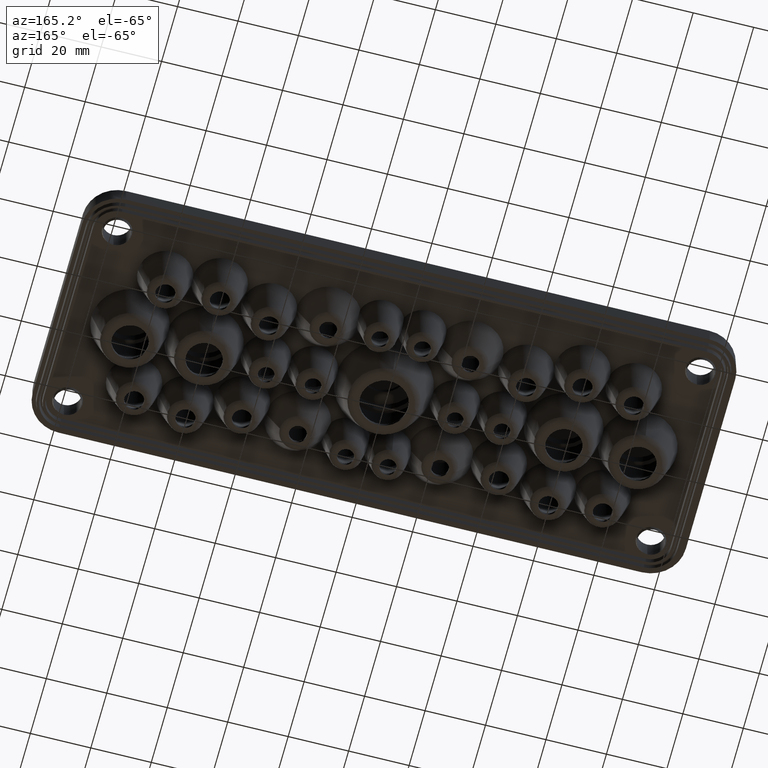
[diagram: clean part render]
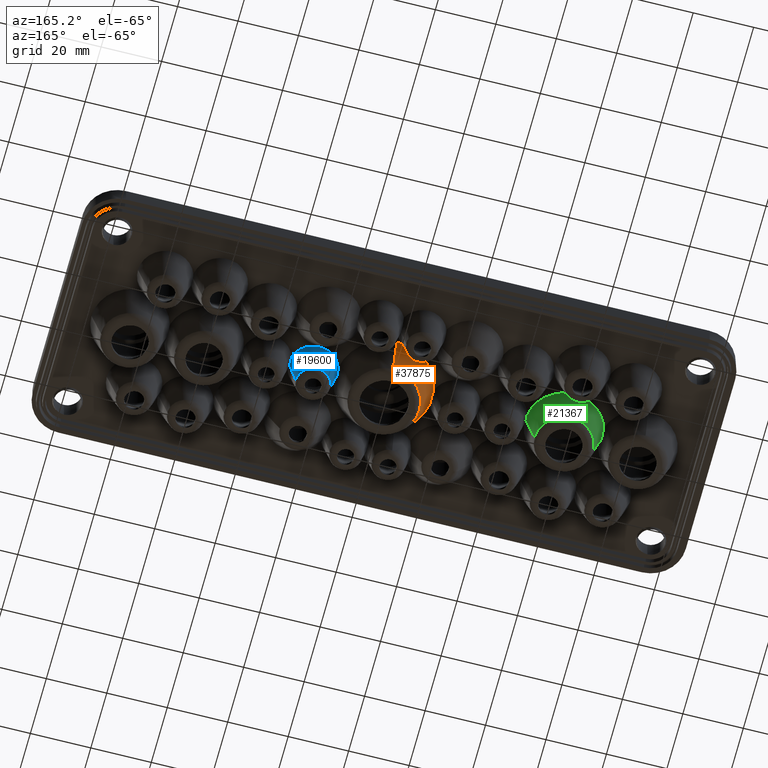
[diagram: same view with three faces highlighted in distinct colors, each labeled with its STEP entity id]
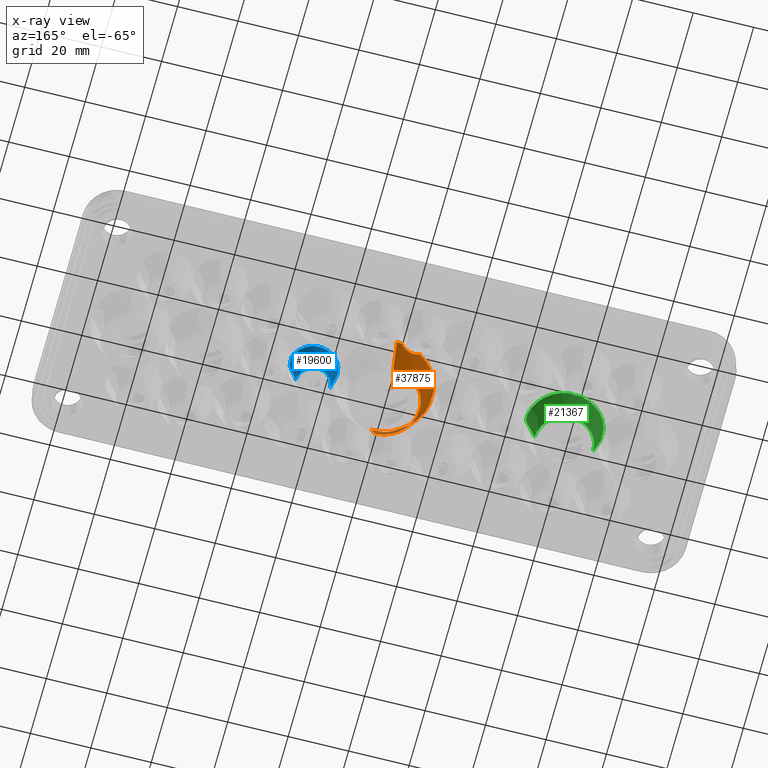
[diagram: x-ray of the same camera — body ghosted, the three highlighted faces saturated]
A machine part, auxiliary view with three faces highlighted in distinct colors.
The next image is the same camera in x-ray (body ghosted, the three faces saturated) — at least one of them is partly hidden behind the body in this view.
Their STEP definitions:

[orange] entity #37875 — the highlighted conical surface has half-angle 20 deg.
#103 = EDGE_CURVE ( 'NONE', #30926, #32108, #34667, .T. ) ;
#677 = EDGE_CURVE ( 'NONE', #29152, #22275, #5481, .T. ) ;
#719 = CARTESIAN_POINT ( 'NONE',  ( -15.62597067010660500, -0.4681044629009573600, -1.012806392266421000 ) ) ;
#922 = DIRECTION ( 'NONE',  ( 0.0000000000000000000, -0.3420201433256686000, 0.9396926207859085400 ) ) ;
#952 = EDGE_CURVE ( 'NONE', #9441, #12457, #23903, .T. ) ;
#2032 = CARTESIAN_POINT ( 'NONE',  ( -8.127618224688598400, -13.78193825242696800, 2.235205155984546900E-015 ) ) ;
#2047 = EDGE_LOOP ( 'NONE', ( #15719, #13426, #24163, #34723, #36636, #36257, #28480, #16507, #18068, #30564, #39861, #25974, #26810 ) ) ;
#2074 = CARTESIAN_POINT ( 'NONE',  ( -4.387149454804543300, 14.60875021664797800, -2.062746000812208700 ) ) ;
#2442 = CARTESIAN_POINT ( 'NONE',  ( -15.62121077094934800, -3.759059662228034300E-015, -1.040714853549272700 ) ) ;
#3104 = DIRECTION ( 'NONE',  ( -0.0000000000000000000, -6.018531076210112000E-033, -1.000000000000000000 ) ) ;
#3368 = CARTESIAN_POINT ( 'NONE',  ( -3.366676951959469000, -15.00823346114531800, -1.701418165386333400 ) ) ;
#3560 = CARTESIAN_POINT ( 'NONE',  ( -1.544499134724594700, 15.92527935148501200, 0.0000000000000000000 ) ) ;
#4255 = DIRECTION ( 'NONE',  ( -0.0000000000000000000, -0.0000000000000000000, 1.000000000000000000 ) ) ;
#4347 = CARTESIAN_POINT ( 'NONE',  ( -15.64362143579583300, -0.9183102480453798600, -0.9095703723358304900 ) ) ;
#4627 = DIRECTION ( 'NONE',  ( -0.0000000000000000000, -6.018531076210112000E-033, -1.000000000000000000 ) ) ;
#4637 = DIRECTION ( 'NONE',  ( 4.188538737676991100E-017, 0.3420201433256686000, 0.9396926207859085400 ) ) ;
#4957 = VERTEX_POINT ( 'NONE', #2442 ) ;
#5101 = CARTESIAN_POINT ( 'NONE',  ( -15.74948214220684600, 2.158062697357395100, -0.2943012987985521600 ) ) ;
#5481 = CIRCLE ( 'NONE', #10661, 11.74735711969176700 ) ;
#5552 = CARTESIAN_POINT ( 'NONE',  ( -1.951558839765675300, 15.69329103100157100, -0.5155321670310039100 ) ) ;
#5705 = CARTESIAN_POINT ( 'NONE',  ( 6.938893903907228400E-015, -16.00000000000000400, 1.407554743615174300E-015 ) ) ;
#6102 = CARTESIAN_POINT ( 'NONE',  ( -6.999999999999998200, -13.93624088590695800, -1.111425984927712400 ) ) ;
#7110 = DIRECTION ( 'NONE',  ( -0.0000000000000000000, -0.0000000000000000000, 1.000000000000000000 ) ) ;
#7187 = EDGE_CURVE ( 'NONE', #22275, #33194, #36853, .T. ) ;
#7410 = VECTOR ( 'NONE', #4637, 999.9999999999998900 ) ;
#7814 = CARTESIAN_POINT ( 'NONE',  ( -4.065177896095978100, 14.72563533031116000, -1.997598085800660100 ) ) ;
#8629 = AXIS2_PLACEMENT_3D ( 'NONE', #11650, #4255, #15102 ) ;
#8818 = B_SPLINE_CURVE_WITH_KNOTS ( 'NONE', 3,
 ( #2032, #43153, #33443, #6102 ),
 .UNSPECIFIED., .F., .F.,
 ( 4, 4 ),
 ( 2.853110011059569900E-018, 0.001590412372373598100 ),
 .UNSPECIFIED. ) ;
#8861 = CARTESIAN_POINT ( 'NONE',  ( -15.65661046168946200, 1.138639472964645800, -0.8336803856345039700 ) ) ;
#8988 = CIRCLE ( 'NONE', #25149, 16.00000000000000000 ) ;
#9441 = VERTEX_POINT ( 'NONE', #3560 ) ;
#10107 = LINE ( 'NONE', #5705, #11205 ) ;
#10661 = AXIS2_PLACEMENT_3D ( 'NONE', #17350, #7110, #27611 ) ;
#10737 = CARTESIAN_POINT ( 'NONE',  ( -3.483099713754390900, -14.95896945292664500, -1.762270332776925800 ) ) ;
#10982 = VERTEX_POINT ( 'NONE', #25050 ) ;
#11205 = VECTOR ( 'NONE', #922, 999.9999999999998900 ) ;
#11274 = CARTESIAN_POINT ( 'NONE',  ( -7.662053718083630100, 13.83406847441088800, -0.5154882228604559200 ) ) ;
#11348 = EDGE_CURVE ( 'NONE', #29152, #18548, #36072, .T. ) ;
#11421 = CARTESIAN_POINT ( 'NONE',  ( -5.385736635581388000, 14.29578260036790600, -1.997077423825628600 ) ) ;
#11553 = CARTESIAN_POINT ( 'NONE',  ( 6.938893903907228400E-015, -4.203148872078097000E-015, 0.0000000000000000000 ) ) ;
#11571 = CARTESIAN_POINT ( 'NONE',  ( -1.742494797188678400, 15.80981067550819900, -0.2632541495825668200 ) ) ;
#11650 = CARTESIAN_POINT ( 'NONE',  ( 7.105427357601001900E-015, -4.203148872078097000E-015, -11.68404028665134000 ) ) ;
#11678 = EDGE_CURVE ( 'NONE', #33194, #30926, #10107, .T. ) ;
#12457 = VERTEX_POINT ( 'NONE', #39072 ) ;
#12761 = EDGE_CURVE ( 'NONE', #10982, #4957, #35048, .T. ) ;
#13426 = ORIENTED_EDGE ( 'NONE', *, *, #677, .T. ) ;
#13499 = CARTESIAN_POINT ( 'NONE',  ( -3.027835619053830900, -15.15602583514638900, -1.501152320803411900 ) ) ;
#13569 = AXIS2_PLACEMENT_3D ( 'NONE', #28796, #25421, #25139 ) ;
#13642 = CARTESIAN_POINT ( 'NONE',  ( -1.864816163021597400, -15.73847433419334200, -0.4258920919362892400 ) ) ;
#13944 = CARTESIAN_POINT ( 'NONE',  ( -2.212875180717590200, -15.54904168334245400, -0.8245992298947070200 ) ) ;
#14461 = CARTESIAN_POINT ( 'NONE',  ( -15.62121077094934800, -3.759059662228034300E-015, -1.040714853549272700 ) ) ;
#14729 = CARTESIAN_POINT ( 'NONE',  ( -7.899644501102760500, 13.80516875212898700, -0.2631949562424530900 ) ) ;
#15035 = CARTESIAN_POINT ( 'NONE',  ( -2.401406213352096100, 15.45666567003327100, -0.9883469783576297500 ) ) ;
#15102 = DIRECTION ( 'NONE',  ( 1.000000000000000000, 0.0000000000000000000, 0.0000000000000000000 ) ) ;
#15201 = CARTESIAN_POINT ( 'NONE',  ( -15.70511760996504200, 1.772948673933423000, -0.5513307004869053600 ) ) ;
#15719 = ORIENTED_EDGE ( 'NONE', *, *, #11348, .F. ) ;
#15722 = CONICAL_SURFACE ( 'NONE', #27115, 16.00000000000000000, 0.3490658503988657800 ) ;
#15960 = CARTESIAN_POINT ( 'NONE',  ( -3.169943328416988700, 15.09150807438981600, -1.598295068752718200 ) ) ;
#16278 = FACE_OUTER_BOUND ( 'NONE', #2047, .T. ) ;
#16507 = ORIENTED_EDGE ( 'NONE', *, *, #20937, .T. ) ;
#17045 = CARTESIAN_POINT ( 'NONE',  ( -15.80085106382977900, -2.516566243648100400, -2.185530005163326800E-015 ) ) ;
#17350 = CARTESIAN_POINT ( 'NONE',  ( 7.105427357601001900E-015, -4.203148872078097000E-015, -11.68404028665134000 ) ) ;
#17525 = CARTESIAN_POINT ( 'NONE',  ( -5.301891818631872900, -14.32054950735613600, -2.010792275444580800 ) ) ;
#17922 = CARTESIAN_POINT ( 'NONE',  ( -1.544499134724599500, -15.92527935148502200, 4.792339433711988400E-032 ) ) ;
#18055 = CARTESIAN_POINT ( 'NONE',  ( 8.898328782542993900E-015, 15.99999999999999600, 1.407554743615174300E-015 ) ) ;
#18068 = ORIENTED_EDGE ( 'NONE', *, *, #12761, .T. ) ;
#18165 = AXIS2_PLACEMENT_3D ( 'NONE', #42434, #4627, #18493 ) ;
#18217 = CARTESIAN_POINT ( 'NONE',  ( -15.65646908843779200, -1.136692418668695100, -0.8345038552028827300 ) ) ;
#18493 = DIRECTION ( 'NONE',  ( 0.0000000000000000000, -1.000000000000000000, 0.0000000000000000000 ) ) ;
#18548 = VERTEX_POINT ( 'NONE', #35611 ) ;
#18967 = CARTESIAN_POINT ( 'NONE',  ( -15.80085106382977900, 2.516566243648089300, -8.785477235911880100E-018 ) ) ;
#19111 = CARTESIAN_POINT ( 'NONE',  ( -15.62121077094935200, 0.2348887737823298300, -1.040714853549273600 ) ) ;
#19273 = VERTEX_POINT ( 'NONE', #20441 ) ;
#20398 = CARTESIAN_POINT ( 'NONE',  ( -6.783023867124986100, -13.97361275222807100, -1.287246792469420200 ) ) ;
#20441 = CARTESIAN_POINT ( 'NONE',  ( -8.127618224688598400, -13.78193825242696800, 2.235205155984546900E-015 ) ) ;
#20874 = EDGE_CURVE ( 'NONE', #28255, #12457, #26115, .T. ) ;
#20937 = EDGE_CURVE ( 'NONE', #19273, #10982, #43490, .T. ) ;
#21361 = CARTESIAN_POINT ( 'NONE',  ( -15.74956085684990000, -2.158612046609589300, -0.2938503292053902800 ) ) ;
#22275 = VERTEX_POINT ( 'NONE', #40309 ) ;
#22900 = VERTEX_POINT ( 'NONE', #42218 ) ;
#23875 = CARTESIAN_POINT ( 'NONE',  ( -3.849865250086897300, -14.81079178680996300, -1.916708623523139900 ) ) ;
#23903 = B_SPLINE_CURVE_WITH_KNOTS ( 'NONE', 3,
 ( #28502, #11571, #5552, #15035, #28648, #15960, #24973, #7814, #2074, #42719, #11421, #28957, #39410, #31969, #43511, #11274, #14729, #38952 ),
 .UNSPECIFIED., .F., .F.,
 ( 4, 2, 2, 2, 2, 2, 2, 2, 4 ),
 ( 9.134646826727812000E-019, 0.001041287543524007400, 0.002082575087048013900, 0.003123862630572020600, 0.004165150174096027800, 0.005206437717620035000, 0.006247725261144042100, 0.007289012804668050200, 0.008330300348192059100 ),
 .UNSPECIFIED. ) ;
#24163 = ORIENTED_EDGE ( 'NONE', *, *, #7187, .T. ) ;
#24563 = CARTESIAN_POINT ( 'NONE',  ( -15.62121077094934300, -0.2343100807263288100, -1.040714853549273600 ) ) ;
#24973 = CARTESIAN_POINT ( 'NONE',  ( -3.450489949731690300, 14.96956669540714700, -1.762257748974168400 ) ) ;
#25050 = CARTESIAN_POINT ( 'NONE',  ( -15.80085106382977900, -2.516566243648100400, -2.185530005163326800E-015 ) ) ;
#25139 = DIRECTION ( 'NONE',  ( 1.000000000000000000, 1.776356839400250500E-015, 0.0000000000000000000 ) ) ;
#25149 = AXIS2_PLACEMENT_3D ( 'NONE', #11553, #28636, #25403 ) ;
#25403 = DIRECTION ( 'NONE',  ( 1.000000000000000000, -1.065814103640150300E-014, 0.0000000000000000000 ) ) ;
#25421 = DIRECTION ( 'NONE',  ( -0.0000000000000000000, 0.0000000000000000000, -1.000000000000000000 ) ) ;
#25974 = ORIENTED_EDGE ( 'NONE', *, *, #952, .F. ) ;
#26115 = CIRCLE ( 'NONE', #13569, 16.00000000000000000 ) ;
#26810 = ORIENTED_EDGE ( 'NONE', *, *, #32578, .T. ) ;
#27033 = CARTESIAN_POINT ( 'NONE',  ( 6.938893903907228400E-015, -4.203148872078097000E-015, 1.407554743615174300E-015 ) ) ;
#27115 = AXIS2_PLACEMENT_3D ( 'NONE', #27033, #29948, #33580 ) ;
#27224 = DIRECTION ( 'NONE',  ( 0.0000000000000000000, -1.000000000000000000, 6.018531076210112000E-033 ) ) ;
#27362 = CARTESIAN_POINT ( 'NONE',  ( -4.231446938731668400, -14.66571618565754200, -2.028862163698169400 ) ) ;
#27611 = DIRECTION ( 'NONE',  ( 1.000000000000000000, 0.0000000000000000000, 0.0000000000000000000 ) ) ;
#27643 = CARTESIAN_POINT ( 'NONE',  ( -6.553735517282573800, -14.01762427342889900, -1.450188060440177800 ) ) ;
#27811 = CARTESIAN_POINT ( 'NONE',  ( -6.076496546159443600, -14.12094369818969900, -1.728148012659869800 ) ) ;
#27881 = EDGE_CURVE ( 'NONE', #22900, #32108, #44114, .T. ) ;
#28255 = VERTEX_POINT ( 'NONE', #41267 ) ;
#28480 = ORIENTED_EDGE ( 'NONE', *, *, #40083, .F. ) ;
#28502 = CARTESIAN_POINT ( 'NONE',  ( -1.544499134724594700, 15.92527935148501200, 0.0000000000000000000 ) ) ;
#28636 = DIRECTION ( 'NONE',  ( -0.0000000000000000000, 0.0000000000000000000, -1.000000000000000000 ) ) ;
#28648 = CARTESIAN_POINT ( 'NONE',  ( -2.643715014733169600, 15.33577110402543300, -1.210449135193177200 ) ) ;
#28796 = CARTESIAN_POINT ( 'NONE',  ( 6.938893903907228400E-015, -4.203148872078097000E-015, 0.0000000000000000000 ) ) ;
#28957 = CARTESIAN_POINT ( 'NONE',  ( -6.025540626942556900, 14.13129692834493200, -1.761620787628459100 ) ) ;
#29152 = VERTEX_POINT ( 'NONE', #33478 ) ;
#29711 = CARTESIAN_POINT ( 'NONE',  ( -15.62121077094934800, -3.759059662228034300E-015, -1.040714853549272700 ) ) ;
#29948 = DIRECTION ( 'NONE',  ( 0.0000000000000000000, 6.018531076210112000E-033, 1.000000000000000000 ) ) ;
#30564 = ORIENTED_EDGE ( 'NONE', *, *, #39574, .T. ) ;
#30926 = VERTEX_POINT ( 'NONE', #31216 ) ;
#31154 = CARTESIAN_POINT ( 'NONE',  ( -3.724260112105108900, -14.86040640634218200, -1.869826379788303700 ) ) ;
#31216 = CARTESIAN_POINT ( 'NONE',  ( 6.938893903907228400E-015, -16.00000000000000400, 0.0000000000000000000 ) ) ;
#31433 = CARTESIAN_POINT ( 'NONE',  ( -5.824949777812038900, -14.18102656590916900, -1.845263982194589100 ) ) ;
#31969 = CARTESIAN_POINT ( 'NONE',  ( -6.891230288093034100, 13.95275473073147900, -1.211004202939371900 ) ) ;
#32108 = VERTEX_POINT ( 'NONE', #17922 ) ;
#32578 = EDGE_CURVE ( 'NONE', #9441, #18548, #8988, .T. ) ;
#32656 = AXIS2_PLACEMENT_3D ( 'NONE', #40590, #3104, #27224 ) ;
#33194 = VERTEX_POINT ( 'NONE', #36724 ) ;
#33443 = CARTESIAN_POINT ( 'NONE',  ( -7.409599123869467600, -13.86569172688350100, -0.7795182871875713200 ) ) ;
#33478 = CARTESIAN_POINT ( 'NONE',  ( 8.637929507978680000E-015, 11.74735711969176300, -11.68404028665134000 ) ) ;
#33580 = DIRECTION ( 'NONE',  ( 0.0000000000000000000, -1.000000000000000000, 0.0000000000000000000 ) ) ;
#34347 = CARTESIAN_POINT ( 'NONE',  ( -6.999999999999998200, -13.93624088590695800, -1.111425984927712400 ) ) ;
#34667 = CIRCLE ( 'NONE', #32656, 16.00000000000000000 ) ;
#34723 = ORIENTED_EDGE ( 'NONE', *, *, #11678, .T. ) ;
#34763 = CARTESIAN_POINT ( 'NONE',  ( -4.495102883137092500, -14.57283043334448200, -2.066911369978658100 ) ) ;
#35008 = CARTESIAN_POINT ( 'NONE',  ( -15.70525798132926800, -1.774980568072926300, -0.5505124989112031300 ) ) ;
#35048 = B_SPLINE_CURVE_WITH_KNOTS ( 'NONE', 3,
 ( #17045, #21361, #35008, #18217, #4347, #719, #24563, #14461 ),
 .UNSPECIFIED., .F., .F.,
 ( 4, 2, 2, 4 ),
 ( 5.680384896447250300E-018, 0.001387802460408018800, 0.002081703690612024900, 0.002775604920816030700 ),
 .UNSPECIFIED. ) ;
#35611 = CARTESIAN_POINT ( 'NONE',  ( 8.898328782542993900E-015, 15.99999999999999600, 0.0000000000000000000 ) ) ;
#35897 = CARTESIAN_POINT ( 'NONE',  ( -15.64347810926758000, 0.9156297838144410500, -0.9104078958428978300 ) ) ;
#36072 = LINE ( 'NONE', #18055, #7410 ) ;
#36257 = ORIENTED_EDGE ( 'NONE', *, *, #27881, .F. ) ;
#36636 = ORIENTED_EDGE ( 'NONE', *, *, #103, .T. ) ;
#36724 = CARTESIAN_POINT ( 'NONE',  ( 6.938893903907228400E-015, -11.74735711969177000, -11.68404028665134000 ) ) ;
#36853 = CIRCLE ( 'NONE', #8629, 11.74735711969176700 ) ;
#37678 = CARTESIAN_POINT ( 'NONE',  ( -2.814763766992092600, -15.25504055863474500, -1.343326849468931700 ) ) ;
#37875 = ADVANCED_FACE ( 'NONE', ( #16278 ), #15722, .T. ) ;
#38191 = B_SPLINE_CURVE_WITH_KNOTS ( 'NONE', 3,
 ( #29711, #19111, #43207, #35897, #8861, #15201, #5101, #18967 ),
 .UNSPECIFIED., .F., .F.,
 ( 4, 2, 2, 4 ),
 ( 0.002775604920816030700, 0.003471219930564771700, 0.004166834940313513200, 0.005558064959810995200 ),
 .UNSPECIFIED. ) ;
#38952 = CARTESIAN_POINT ( 'NONE',  ( -8.127618224688596600, 13.78193825242696500, 9.528491174538834400E-032 ) ) ;
#39072 = CARTESIAN_POINT ( 'NONE',  ( -8.127618224688596600, 13.78193825242696500, 9.528491174538834400E-032 ) ) ;
#39410 = CARTESIAN_POINT ( 'NONE',  ( -6.323497678840272600, 14.06485205496268700, -1.597856023406207800 ) ) ;
#39574 = EDGE_CURVE ( 'NONE', #4957, #28255, #38191, .T. ) ;
#39861 = ORIENTED_EDGE ( 'NONE', *, *, #20874, .T. ) ;
#40083 = EDGE_CURVE ( 'NONE', #19273, #22900, #8818, .T. ) ;
#40309 = CARTESIAN_POINT ( 'NONE',  ( -11.74735711969176000, -2.764512542570958400E-015, -11.68404028665134000 ) ) ;
#40590 = CARTESIAN_POINT ( 'NONE',  ( 6.938893903907228400E-015, -4.203148872078097000E-015, 0.0000000000000000000 ) ) ;
#41267 = CARTESIAN_POINT ( 'NONE',  ( -15.80085106382977900, 2.516566243648089300, -8.785477235911880100E-018 ) ) ;
#41478 = CARTESIAN_POINT ( 'NONE',  ( -1.544499134724599500, -15.92527935148502200, 4.792339433711988400E-032 ) ) ;
#42218 = CARTESIAN_POINT ( 'NONE',  ( -6.999999999999998200, -13.93624088590695800, -1.111425984927712400 ) ) ;
#42434 = CARTESIAN_POINT ( 'NONE',  ( 6.938893903907228400E-015, -4.203148872078097000E-015, -1.115571656986081600E-015 ) ) ;
#42719 = CARTESIAN_POINT ( 'NONE',  ( -5.056554073919519600, 14.39084731691289700, -2.062515168239297000 ) ) ;
#43153 = CARTESIAN_POINT ( 'NONE',  ( -7.779343844176231000, -13.81742737707457600, -0.4020816912472218700 ) ) ;
#43207 = CARTESIAN_POINT ( 'NONE',  ( -15.62587803374622400, 0.4647532514349623200, -1.013348981809976600 ) ) ;
#43490 = CIRCLE ( 'NONE', #18165, 16.00000000000000000 ) ;
#43511 = CARTESIAN_POINT ( 'NONE',  ( -7.158918707312945900, 13.90768154336968500, -0.9884865541603407000 ) ) ;
#44114 = B_SPLINE_CURVE_WITH_KNOTS ( 'NONE', 3,
 ( #34347, #20398, #27643, #27811, #31433, #17525, #44791, #34763, #27362, #23875, #31154, #10737, #3368, #13499, #37678, #13944, #13642, #41478 ),
 .UNSPECIFIED., .F., .F.,
 ( 4, 2, 2, 2, 2, 2, 2, 2, 4 ),
 ( 0.001590412372373598100, 0.002432898369350906800, 0.003275384366328215300, 0.004117870363305523700, 0.004960356360282832200, 0.005381599358771485500, 0.005802842357260140600, 0.006645328354237447400, 0.008330300348192064300 ),
 .UNSPECIFIED. ) ;
#44791 = CARTESIAN_POINT ( 'NONE',  ( -5.036213427964419500, -14.39838492800661000, -2.057578819225887500 ) ) ;

[blue] entity #19600 — the highlighted conical surface has half-angle 12 deg.
#337 = DIRECTION ( 'NONE',  ( 0.0000000000000000000, -0.0000000000000000000, 1.000000000000000000 ) ) ;
#1128 = B_SPLINE_CURVE_WITH_KNOTS ( 'NONE', 3,
 ( #22859, #36192, #9149, #36344, #43336, #22548, #1913, #33780, #9729, #30597 ),
 .UNSPECIFIED., .F., .F.,
 ( 4, 2, 2, 2, 4 ),
 ( -0.002968668183553940500, -0.002226501137665455900, -0.001484334091776970900, -0.0007421670458884863300, -1.301042606982605300E-018 ),
 .UNSPECIFIED. ) ;
#1157 = DIRECTION ( 'NONE',  ( -0.2079116908177592900, 2.546183866652830800E-017, 0.9781476007338055800 ) ) ;
#1913 = CARTESIAN_POINT ( 'NONE',  ( 31.25000000000001400, 0.9561116530570847900, -1.385943754630395900 ) ) ;
#2066 = DIRECTION ( 'NONE',  ( -0.0000000000000000000, -0.0000000000000000000, 1.000000000000000000 ) ) ;
#2113 = CARTESIAN_POINT ( 'NONE',  ( 15.74956085684990900, 2.158612046609586200, -0.2938503292053927200 ) ) ;
#4030 = ORIENTED_EDGE ( 'NONE', *, *, #37427, .T. ) ;
#4476 = VERTEX_POINT ( 'NONE', #40720 ) ;
#4747 = AXIS2_PLACEMENT_3D ( 'NONE', #38022, #34674, #41682 ) ;
#5444 = CARTESIAN_POINT ( 'NONE',  ( 15.65646908843781100, 1.136692418668688400, -0.8345038552028761800 ) ) ;
#6614 = CARTESIAN_POINT ( 'NONE',  ( 29.17349183336731100, -3.759059662228034300E-015, -11.41582338163552100 ) ) ;
#9149 = CARTESIAN_POINT ( 'NONE',  ( 31.25000000000000700, 2.054278493041213700, -0.3950751865303510600 ) ) ;
#9729 = CARTESIAN_POINT ( 'NONE',  ( 31.25000000000001400, 0.2519369230961524500, -1.646620538317440400 ) ) ;
#10724 = CARTESIAN_POINT ( 'NONE',  ( 23.50000000000000700, -3.759059662228034300E-015, 2.005686399576516500E-015 ) ) ;
#10795 = CARTESIAN_POINT ( 'NONE',  ( 31.25000000000000700, -2.809958392888836100E-015, -1.646620538317440200 ) ) ;
#11024 = DIRECTION ( 'NONE',  ( 0.2079116908177592900, 0.0000000000000000000, 0.9781476007338055800 ) ) ;
#12018 = VERTEX_POINT ( 'NONE', #34716 ) ;
#12251 = LINE ( 'NONE', #18094, #41471 ) ;
#13093 = DIRECTION ( 'NONE',  ( 1.000000000000000000, 0.0000000000000000000, 0.0000000000000000000 ) ) ;
#17280 = AXIS2_PLACEMENT_3D ( 'NONE', #10724, #337, #42178 ) ;
#18094 = CARTESIAN_POINT ( 'NONE',  ( 31.60000000000000100, -3.759059662228034300E-015, 2.005686399576516500E-015 ) ) ;
#18105 = ORIENTED_EDGE ( 'NONE', *, *, #44590, .F. ) ;
#19017 = EDGE_CURVE ( 'NONE', #12018, #4476, #36463, .T. ) ;
#19461 = ORIENTED_EDGE ( 'NONE', *, *, #19017, .T. ) ;
#19600 = ADVANCED_FACE ( 'NONE', ( #31087 ), #44139, .T. ) ;
#21802 = CARTESIAN_POINT ( 'NONE',  ( 15.40000000000001100, -2.767095754918678600E-015, 2.005686399576516500E-015 ) ) ;
#22444 = CARTESIAN_POINT ( 'NONE',  ( 15.70525798132927500, 1.774980568072917400, -0.5505124989111963600 ) ) ;
#22548 = CARTESIAN_POINT ( 'NONE',  ( 31.25000000000000700, 1.161312359527007600, -1.250247796080973000 ) ) ;
#22748 = CARTESIAN_POINT ( 'NONE',  ( 15.80085106382979300, 2.516566243648083100, -6.357065235284335900E-016 ) ) ;
#22859 = CARTESIAN_POINT ( 'NONE',  ( 31.25000000000000700, 2.355313142662764900, 1.558580609942882000E-015 ) ) ;
#23879 = EDGE_CURVE ( 'NONE', #33145, #32536, #1128, .T. ) ;
#25937 = CARTESIAN_POINT ( 'NONE',  ( 15.62121077094936300, 0.2343100807263217800, -1.040714853549266700 ) ) ;
#26238 = CARTESIAN_POINT ( 'NONE',  ( 15.64362143579584700, 0.9183102480453735300, -0.9095703723358267200 ) ) ;
#26550 = CARTESIAN_POINT ( 'NONE',  ( 31.25000000000000700, 2.355313142662764900, 1.558580609942882000E-015 ) ) ;
#28391 = CARTESIAN_POINT ( 'NONE',  ( 15.80085106382979300, 2.516566243648083100, -6.357065235284335900E-016 ) ) ;
#29747 = CARTESIAN_POINT ( 'NONE',  ( 15.62597067010662300, 0.4681044629009505900, -1.012806392266417000 ) ) ;
#30552 = CIRCLE ( 'NONE', #4747, 8.099999999999996100 ) ;
#30597 = CARTESIAN_POINT ( 'NONE',  ( 31.25000000000000700, -2.809958392888836100E-015, -1.646620538317440200 ) ) ;
#30938 = EDGE_CURVE ( 'NONE', #36185, #33145, #30552, .T. ) ;
#31087 = FACE_OUTER_BOUND ( 'NONE', #43326, .T. ) ;
#31092 = ORIENTED_EDGE ( 'NONE', *, *, #23879, .T. ) ;
#32536 = VERTEX_POINT ( 'NONE', #10795 ) ;
#32737 = CARTESIAN_POINT ( 'NONE',  ( 23.50000000000000700, -3.759059662228034300E-015, -11.41582338163552100 ) ) ;
#33145 = VERTEX_POINT ( 'NONE', #26550 ) ;
#33780 = CARTESIAN_POINT ( 'NONE',  ( 31.25000000000000700, 0.4969565381462222600, -1.587566337301988600 ) ) ;
#34674 = DIRECTION ( 'NONE',  ( -0.0000000000000000000, 0.0000000000000000000, -1.000000000000000000 ) ) ;
#34716 = CARTESIAN_POINT ( 'NONE',  ( 17.82650816663270300, -2.915676527887260400E-015, -11.41582338163552100 ) ) ;
#35541 = EDGE_CURVE ( 'NONE', #36185, #4476, #41295, .T. ) ;
#35871 = ORIENTED_EDGE ( 'NONE', *, *, #35541, .F. ) ;
#36185 = VERTEX_POINT ( 'NONE', #28391 ) ;
#36192 = CARTESIAN_POINT ( 'NONE',  ( 31.25000000000000700, 2.208562293683820500, -0.2007565587651950200 ) ) ;
#36344 = CARTESIAN_POINT ( 'NONE',  ( 31.25000000000000700, 1.722884187421112500, -0.7642039208291759900 ) ) ;
#36463 = LINE ( 'NONE', #21802, #37032 ) ;
#37032 = VECTOR ( 'NONE', #1157, 1000.000000000000100 ) ;
#37427 = EDGE_CURVE ( 'NONE', #39702, #12018, #43904, .T. ) ;
#38022 = CARTESIAN_POINT ( 'NONE',  ( 23.50000000000000700, -3.759059662228034300E-015, 2.078107479923842800E-015 ) ) ;
#39702 = VERTEX_POINT ( 'NONE', #6614 ) ;
#40509 = AXIS2_PLACEMENT_3D ( 'NONE', #32737, #2066, #13093 ) ;
#40720 = CARTESIAN_POINT ( 'NONE',  ( 15.62121077094936300, -2.794186261176682300E-015, -1.040714853549266500 ) ) ;
#41295 = B_SPLINE_CURVE_WITH_KNOTS ( 'NONE', 3,
 ( #22748, #2113, #22444, #5444, #26238, #29747, #25937, #43243 ),
 .UNSPECIFIED., .F., .F.,
 ( 4, 2, 2, 4 ),
 ( -0.002766773029302995100, -0.001383386514651497800, -0.0006916932573257489900, -4.336808689942017700E-019 ),
 .UNSPECIFIED. ) ;
#41471 = VECTOR ( 'NONE', #11024, 1000.000000000000100 ) ;
#41682 = DIRECTION ( 'NONE',  ( 1.000000000000000000, 8.881784197001252300E-016, 0.0000000000000000000 ) ) ;
#42178 = DIRECTION ( 'NONE',  ( 1.000000000000000000, 0.0000000000000000000, 0.0000000000000000000 ) ) ;
#43063 = ORIENTED_EDGE ( 'NONE', *, *, #30938, .T. ) ;
#43243 = CARTESIAN_POINT ( 'NONE',  ( 15.62121077094936300, -2.794186261176682300E-015, -1.040714853549266500 ) ) ;
#43326 = EDGE_LOOP ( 'NONE', ( #4030, #19461, #35871, #43063, #31092, #18105 ) ) ;
#43336 = CARTESIAN_POINT ( 'NONE',  ( 31.25000000000001400, 1.544636167410821100, -0.9401062783104390300 ) ) ;
#43904 = CIRCLE ( 'NONE', #40509, 5.673491833367305200 ) ;
#44139 = CONICAL_SURFACE ( 'NONE', #17280, 8.099999999999996100, 0.2094395102393194800 ) ;
#44590 = EDGE_CURVE ( 'NONE', #39702, #32536, #12251, .T. ) ;

[green] entity #21367 — the highlighted conical surface has half-angle 15 deg.
#17 = LINE ( 'NONE', #17473, #7570 ) ;
#576 = CIRCLE ( 'NONE', #10384, 9.663858175015617400 ) ;
#657 = VERTEX_POINT ( 'NONE', #20075 ) ;
#1000 = CARTESIAN_POINT ( 'NONE',  ( -60.09922178884430400, 12.59295610571407500, -0.5364397710441062300 ) ) ;
#1561 = EDGE_CURVE ( 'NONE', #32877, #34865, #17, .T. ) ;
#2967 = CARTESIAN_POINT ( 'NONE',  ( -71.75000000000000000, 2.522069714789408200, -0.9169682785383943500 ) ) ;
#3562 = CARTESIAN_POINT ( 'NONE',  ( -71.75000000000000000, 1.652231331579678400, -1.464875037204070400 ) ) ;
#3608 = CARTESIAN_POINT ( 'NONE',  ( -59.50000000000000000, -4.203148872078097000E-015, 6.938893903907228400E-015 ) ) ;
#7265 = EDGE_CURVE ( 'NONE', #38588, #12224, #16904, .T. ) ;
#7456 = B_SPLINE_CURVE_WITH_KNOTS ( 'NONE', 3,
 ( #38004, #13542, #10191, #2967, #24212, #3562, #37862, #41221, #27697, #24067, #37404, #44536 ),
 .UNSPECIFIED., .F., .F.,
 ( 4, 2, 2, 2, 2, 4 ),
 ( 5.146593725141218300E-018, 0.001024534860932546700, 0.002049069721865088300, 0.003073604582797629300, 0.003585872013263900800, 0.004098139443730172200 ),
 .UNSPECIFIED. ) ;
#7570 = VECTOR ( 'NONE', #20770, 1000.000000000000100 ) ;
#7744 = FACE_OUTER_BOUND ( 'NONE', #43040, .T. ) ;
#8120 = CARTESIAN_POINT ( 'NONE',  ( -61.00136573789012600, 12.58269306283732000, -0.3040272625362427400 ) ) ;
#8181 = DIRECTION ( 'NONE',  ( 1.000000000000000000, 8.881784197001252300E-016, 0.0000000000000000000 ) ) ;
#8924 = B_SPLINE_CURVE_WITH_KNOTS ( 'NONE', 3,
 ( #23801, #9760, #16723, #20177, #40950, #44413 ),
 .UNSPECIFIED., .F., .F.,
 ( 4, 2, 4 ),
 ( 1.112344714906473200E-017, 0.001013261100209196300, 0.002026522200418381800 ),
 .UNSPECIFIED. ) ;
#9039 = LINE ( 'NONE', #29703, #37134 ) ;
#9755 = CARTESIAN_POINT ( 'NONE',  ( -69.16385817501560500, -2.830695888549315500E-015, -11.51763809020504100 ) ) ;
#9760 = CARTESIAN_POINT ( 'NONE',  ( -46.90259571324681800, 1.584566982583279100, -0.2091661200059206100 ) ) ;
#10191 = CARTESIAN_POINT ( 'NONE',  ( -71.75000000000001400, 3.048352780416060200, -0.4815123582583195100 ) ) ;
#10384 = AXIS2_PLACEMENT_3D ( 'NONE', #33551, #37461, #30506 ) ;
#11269 = EDGE_CURVE ( 'NONE', #31719, #657, #29582, .T. ) ;
#11427 = CARTESIAN_POINT ( 'NONE',  ( -58.03602970599227700, 12.66567372776761100, -2.669156108325836500E-015 ) ) ;
#11486 = EDGE_CURVE ( 'NONE', #30854, #20284, #9039, .T. ) ;
#12224 = VERTEX_POINT ( 'NONE', #39740 ) ;
#12272 = ORIENTED_EDGE ( 'NONE', *, *, #14624, .T. ) ;
#13542 = CARTESIAN_POINT ( 'NONE',  ( -71.75000000000001400, 3.297064683661819800, -0.2467883785509999700 ) ) ;
#13675 = ORIENTED_EDGE ( 'NONE', *, *, #1561, .F. ) ;
#14247 = CARTESIAN_POINT ( 'NONE',  ( -59.50000000000000000, -4.203148872078097000E-015, 6.132263136538069900E-015 ) ) ;
#14624 = EDGE_CURVE ( 'NONE', #32877, #30854, #576, .T. ) ;
#16723 = CARTESIAN_POINT ( 'NONE',  ( -46.91742057330110800, 1.299274496657077900, -0.3895566555452920600 ) ) ;
#16904 = CIRCLE ( 'NONE', #40492, 12.74999999999999800 ) ;
#17146 = ORIENTED_EDGE ( 'NONE', *, *, #11269, .T. ) ;
#17445 = ORIENTED_EDGE ( 'NONE', *, *, #11486, .T. ) ;
#17473 = CARTESIAN_POINT ( 'NONE',  ( -46.75000000000000000, -4.203148872078097000E-015, 6.132263136538069900E-015 ) ) ;
#17966 = CONICAL_SURFACE ( 'NONE', #25836, 12.74999999999999800, 0.2617993877991493500 ) ;
#18809 = CARTESIAN_POINT ( 'NONE',  ( -59.48127881036118900, 12.60735954300388400, -0.5357312739906505700 ) ) ;
#20075 = CARTESIAN_POINT ( 'NONE',  ( -61.55117029400772600, 12.58392627223237200, 4.901634653720066800E-015 ) ) ;
#20177 = CARTESIAN_POINT ( 'NONE',  ( -46.93904610486191600, 0.6703672745739575100, -0.6533194908339127200 ) ) ;
#20284 = VERTEX_POINT ( 'NONE', #41368 ) ;
#20770 = DIRECTION ( 'NONE',  ( 0.2588190451025206800, 0.0000000000000000000, 0.9659258262890683100 ) ) ;
#21367 = ADVANCED_FACE ( 'NONE', ( #7744 ), #17966, .T. ) ;
#21452 = CARTESIAN_POINT ( 'NONE',  ( -46.94517397356941800, -2.786056474687968400E-015, -0.7283991856761763400 ) ) ;
#21593 = CARTESIAN_POINT ( 'NONE',  ( -58.03602970599227700, 12.66567372776761100, -2.669156108325836500E-015 ) ) ;
#21687 = ORIENTED_EDGE ( 'NONE', *, *, #22014, .T. ) ;
#22014 = EDGE_CURVE ( 'NONE', #12224, #34865, #8924, .T. ) ;
#22094 = CARTESIAN_POINT ( 'NONE',  ( -58.57949938054088800, 12.63912452139195600, -0.3016637847673227000 ) ) ;
#22233 = CARTESIAN_POINT ( 'NONE',  ( -58.30152899664873400, 12.65189806243564300, -0.1648428275347194000 ) ) ;
#23710 = EDGE_CURVE ( 'NONE', #38588, #657, #31069, .T. ) ;
#23801 = CARTESIAN_POINT ( 'NONE',  ( -46.88530487804877800, 1.852556876379247500, 7.113343719158832700E-015 ) ) ;
#24067 = CARTESIAN_POINT ( 'NONE',  ( -71.74999999999998600, 0.3438637776887609200, -1.852374062291114900 ) ) ;
#24212 = CARTESIAN_POINT ( 'NONE',  ( -71.75000000000000000, 2.242163217165612700, -1.119250262258745500 ) ) ;
#25148 = CARTESIAN_POINT ( 'NONE',  ( -61.28484110593207400, 12.58250508577748100, -0.1651383086316246000 ) ) ;
#25742 = CARTESIAN_POINT ( 'NONE',  ( -59.17614836274136500, 12.61679176029032200, -0.4850687368811202900 ) ) ;
#25836 = AXIS2_PLACEMENT_3D ( 'NONE', #14247, #38906, #38446 ) ;
#27697 = CARTESIAN_POINT ( 'NONE',  ( -71.74999999999998600, 0.6824573989613684800, -1.799485373102532000 ) ) ;
#28867 = CARTESIAN_POINT ( 'NONE',  ( -59.50000000000000000, -4.203148872078097000E-015, 0.0000000000000000000 ) ) ;
#29582 = CIRCLE ( 'NONE', #33108, 12.74999999999999800 ) ;
#29703 = CARTESIAN_POINT ( 'NONE',  ( -72.25000000000000000, -2.641724203165222200E-015, 6.132263136538069900E-015 ) ) ;
#30506 = DIRECTION ( 'NONE',  ( 1.000000000000000000, 0.0000000000000000000, 1.795063053037824300E-016 ) ) ;
#30854 = VERTEX_POINT ( 'NONE', #9755 ) ;
#31069 = B_SPLINE_CURVE_WITH_KNOTS ( 'NONE', 3,
 ( #11427, #22233, #22094, #42438, #25742, #18809, #35884, #32277, #1000, #35588, #39273, #8120, #25148, #43042 ),
 .UNSPECIFIED., .F., .F.,
 ( 4, 2, 2, 2, 2, 2, 4 ),
 ( 6.960681190965680400E-019, 0.0009295024096926888600, 0.001394253614539042700, 0.001859004819385396800, 0.002323756024231750900, 0.002788507229078105000, 0.003718009638770793200 ),
 .UNSPECIFIED. ) ;
#31719 = VERTEX_POINT ( 'NONE', #32811 ) ;
#32277 = CARTESIAN_POINT ( 'NONE',  ( -59.94304631830952000, 12.59600029904844700, -0.5491868211358024200 ) ) ;
#32811 = CARTESIAN_POINT ( 'NONE',  ( -71.75000000000001400, 3.535533905932720400, 6.938893903907228400E-015 ) ) ;
#32877 = VERTEX_POINT ( 'NONE', #44654 ) ;
#33108 = AXIS2_PLACEMENT_3D ( 'NONE', #3608, #41994, #34563 ) ;
#33551 = CARTESIAN_POINT ( 'NONE',  ( -59.50000000000000000, -4.203148872078097000E-015, -11.51763809020504100 ) ) ;
#34563 = DIRECTION ( 'NONE',  ( 1.000000000000000000, 1.776356839400250500E-015, 0.0000000000000000000 ) ) ;
#34692 = ORIENTED_EDGE ( 'NONE', *, *, #7265, .T. ) ;
#34865 = VERTEX_POINT ( 'NONE', #21452 ) ;
#35588 = CARTESIAN_POINT ( 'NONE',  ( -60.40792448846298200, 12.58812025351020100, -0.4856228283235644600 ) ) ;
#35884 = CARTESIAN_POINT ( 'NONE',  ( -59.63464718401303300, 12.60319356714143900, -0.5487271768652739500 ) ) ;
#37134 = VECTOR ( 'NONE', #43500, 1000.000000000000100 ) ;
#37404 = CARTESIAN_POINT ( 'NONE',  ( -71.74999999999998600, 0.1728486774295639500, -1.866025403784410600 ) ) ;
#37461 = DIRECTION ( 'NONE',  ( -0.0000000000000000000, -0.0000000000000000000, 1.000000000000000000 ) ) ;
#37862 = CARTESIAN_POINT ( 'NONE',  ( -71.75000000000000000, 1.343514154556660200, -1.608096658900148900 ) ) ;
#38004 = CARTESIAN_POINT ( 'NONE',  ( -71.75000000000001400, 3.535533905932720400, 6.938893903907228400E-015 ) ) ;
#38446 = DIRECTION ( 'NONE',  ( 1.000000000000000000, 0.0000000000000000000, 0.0000000000000000000 ) ) ;
#38588 = VERTEX_POINT ( 'NONE', #21593 ) ;
#38906 = DIRECTION ( 'NONE',  ( 0.0000000000000000000, -0.0000000000000000000, 1.000000000000000000 ) ) ;
#39273 = CARTESIAN_POINT ( 'NONE',  ( -60.55864402172526400, 12.58634559225757400, -0.4480959986608661300 ) ) ;
#39299 = ORIENTED_EDGE ( 'NONE', *, *, #39705, .F. ) ;
#39705 = EDGE_CURVE ( 'NONE', #31719, #20284, #7456, .T. ) ;
#39740 = CARTESIAN_POINT ( 'NONE',  ( -46.88530487804877800, 1.852556876379247500, 7.113343719158832700E-015 ) ) ;
#40492 = AXIS2_PLACEMENT_3D ( 'NONE', #28867, #42786, #8181 ) ;
#40950 = CARTESIAN_POINT ( 'NONE',  ( -46.94517397356941800, 0.3426053512469873800, -0.7283991856761763400 ) ) ;
#41221 = CARTESIAN_POINT ( 'NONE',  ( -71.74999999999998600, 0.8511350990242910800, -1.759872439488284100 ) ) ;
#41368 = CARTESIAN_POINT ( 'NONE',  ( -71.75000000000000000, -2.702956543122589000E-015, -1.866025403784411100 ) ) ;
#41967 = ORIENTED_EDGE ( 'NONE', *, *, #23710, .F. ) ;
#41994 = DIRECTION ( 'NONE',  ( -0.0000000000000000000, 0.0000000000000000000, -1.000000000000000000 ) ) ;
#42438 = CARTESIAN_POINT ( 'NONE',  ( -59.02315559715886900, 12.62210976035135900, -0.4469003285269790300 ) ) ;
#42786 = DIRECTION ( 'NONE',  ( -0.0000000000000000000, 0.0000000000000000000, -1.000000000000000000 ) ) ;
#43040 = EDGE_LOOP ( 'NONE', ( #12272, #17445, #39299, #17146, #41967, #34692, #21687, #13675 ) ) ;
#43042 = CARTESIAN_POINT ( 'NONE',  ( -61.55117029400772600, 12.58392627223237200, 4.901634653720066800E-015 ) ) ;
#43500 = DIRECTION ( 'NONE',  ( -0.2588190451025206800, 3.169619151431763100E-017, 0.9659258262890683100 ) ) ;
#44413 = CARTESIAN_POINT ( 'NONE',  ( -46.94517397356941800, -2.786056474687968400E-015, -0.7283991856761763400 ) ) ;
#44536 = CARTESIAN_POINT ( 'NONE',  ( -71.75000000000000000, -2.702956543122589000E-015, -1.866025403784411100 ) ) ;
#44654 = CARTESIAN_POINT ( 'NONE',  ( -49.83614182498438100, -4.203148872078097000E-015, -11.51763809020504000 ) ) ;